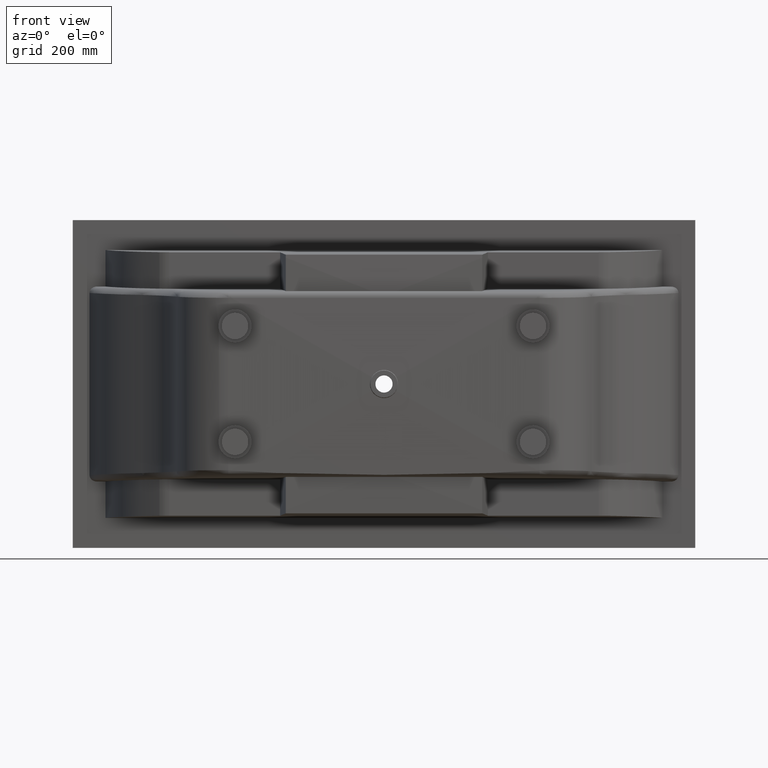
[diagram: clean part render]
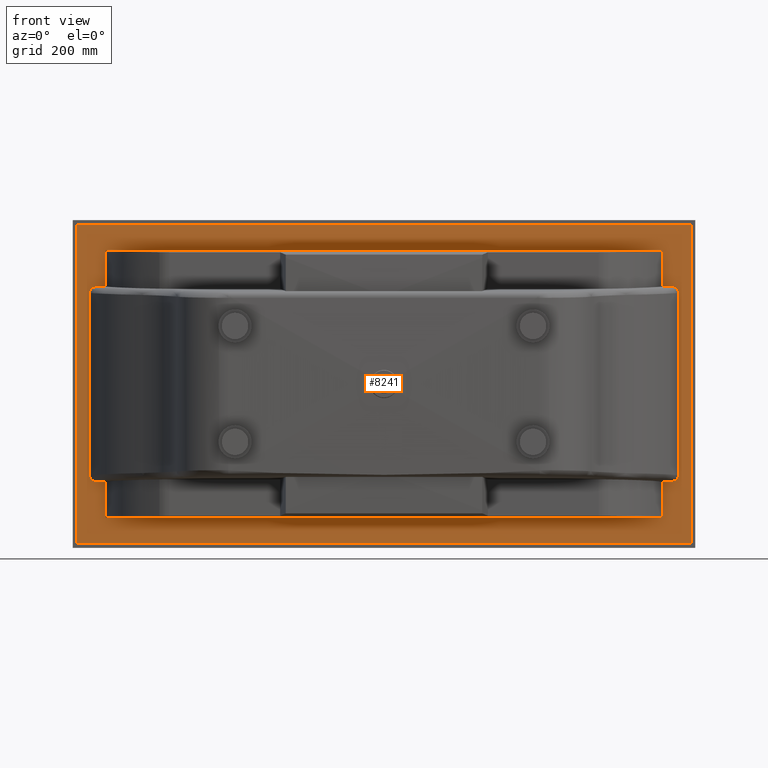
[diagram: same view with one face highlighted and labeled with its STEP entity id]
A machine part, front view. The second image highlights one B-rep face of the part: STEP entity #8241.
In plain terms, the highlighted planar face has unit normal (0, -1, 0).
Its self-contained STEP definition (entity closure, byte-faithful):
#23 = LINE ( 'NONE', #6524, #1768 ) ;
#71 = VECTOR ( 'NONE', #6803, 1000.000000000000000 ) ;
#90 = VECTOR ( 'NONE', #3848, 1000.000000000000000 ) ;
#114 = VERTEX_POINT ( 'NONE', #728 ) ;
#184 = VERTEX_POINT ( 'NONE', #8555 ) ;
#253 = VECTOR ( 'NONE', #2377, 1000.000000000000000 ) ;
#306 = CARTESIAN_POINT ( 'NONE',  ( 58.50698614259769000, 0.0000000000000000000, -785.0471888328023600 ) ) ;
#332 = CARTESIAN_POINT ( 'NONE',  ( 50.59990737379110500, -0.0000000000000000000, -771.1726844408915400 ) ) ;
#364 = ORIENTED_EDGE ( 'NONE', *, *, #5227, .T. ) ;
#374 = DIRECTION ( 'NONE',  ( -0.0000000000000000000, -0.0000000000000000000, -1.000000000000000000 ) ) ;
#393 = CARTESIAN_POINT ( 'NONE',  ( 60.00000000000255100, 0.0000000000000000000, -789.5018008824870300 ) ) ;
#398 = DIRECTION ( 'NONE',  ( -1.000000000000000000, 0.0000000000000000000, 0.0000000000000000000 ) ) ;
#402 = ORIENTED_EDGE ( 'NONE', *, *, #1420, .F. ) ;
#425 = CARTESIAN_POINT ( 'NONE',  ( 1822.045879442682200, -0.0000000000000000000, -784.5819432553215600 ) ) ;
#453 = VERTEX_POINT ( 'NONE', #3902 ) ;
#542 = CARTESIAN_POINT ( 'NONE',  ( 62.00439208400629100, -0.0000000000000000000, -202.8489472424220400 ) ) ;
#551 = EDGE_CURVE ( 'NONE', #184, #6965, #5439, .T. ) ;
#567 = ORIENTED_EDGE ( 'NONE', *, *, #9147, .T. ) ;
#602 = CARTESIAN_POINT ( 'NONE',  ( 69.87529596125963800, -0.0000000000000000000, -200.6099005751303300 ) ) ;
#611 = CARTESIAN_POINT ( 'NONE',  ( 1826.941555854491300, 0.0000000000000000000, -211.0350116347083000 ) ) ;
#728 = CARTESIAN_POINT ( 'NONE',  ( 98.92710784676805200, 0.0000000000000000000, -899.5018008824869200 ) ) ;
#839 = LINE ( 'NONE', #3352, #8149 ) ;
#894 = EDGE_CURVE ( 'NONE', #1852, #5026, #4994, .T. ) ;
#896 = CARTESIAN_POINT ( 'NONE',  ( 50.71779609476657000, -0.0000000000000000000, -217.4735161218352700 ) ) ;
#960 = CARTESIAN_POINT ( 'NONE',  ( 58.49836198429665000, 0.0000000000000000000, -205.0016772999846100 ) ) ;
#963 = CARTESIAN_POINT ( 'NONE',  ( 7.784735339874482800E-016, 0.0000000000000000000, -977.0000000000000000 ) ) ;
#1017 = EDGE_CURVE ( 'NONE', #5026, #8993, #839, .T. ) ;
#1057 = CARTESIAN_POINT ( 'NONE',  ( 55.44021134214971600, 0.0000000000000000000, -782.2838892614028100 ) ) ;
#1085 = CARTESIAN_POINT ( 'NONE',  ( 50.55988753108442800, 0.0000000000000000000, -769.7886444007122000 ) ) ;
#1179 = CARTESIAN_POINT ( 'NONE',  ( 1820.368228453022800, -0.0000000000000000000, -785.7824772192605000 ) ) ;
#1229 = CARTESIAN_POINT ( 'NONE',  ( 59.63177154698249200, -0.0000000000000000000, -204.2175227807381400 ) ) ;
#1290 = CARTESIAN_POINT ( 'NONE',  ( 53.72596785293767900, 0.0000000000000000000, -209.8895801317027000 ) ) ;
#1334 = CARTESIAN_POINT ( 'NONE',  ( 1812.814519508303200, -0.0000000000000000000, -201.0548218446952500 ) ) ;
#1362 = EDGE_CURVE ( 'NONE', #453, #114, #5944, .T. ) ;
#1363 = CARTESIAN_POINT ( 'NONE',  ( 1827.438647752279400, 0.0000000000000000000, -211.9450546756605700 ) ) ;
#1383 = ORIENTED_EDGE ( 'NONE', *, *, #3309, .F. ) ;
#1420 = EDGE_CURVE ( 'NONE', #453, #2269, #23, .T. ) ;
#1453 = CARTESIAN_POINT ( 'NONE',  ( 1829.440112468920700, 0.0000000000000000000, -214.9999999999992900 ) ) ;
#1463 = DIRECTION ( 'NONE',  ( 0.0000000000000000000, 0.0000000000000000000, -1.000000000000000000 ) ) ;
#1570 = VERTEX_POINT ( 'NONE', #8928 ) ;
#1571 = ORIENTED_EDGE ( 'NONE', *, *, #6033, .F. ) ;
#1578 = CARTESIAN_POINT ( 'NONE',  ( 1867.000000000000000, 0.0000000000000000000, -990.0000000000000000 ) ) ;
#1589 = B_SPLINE_CURVE_WITH_KNOTS ( 'NONE', 3,
 ( #5298, #7999, #7406, #3220, #8091, #3945, #8798, #4648, #306, #5324, #1057, #6009, #1797, #6711, #2540, #7442, #3244, #8125, #3977, #8829, #4683, #332, #5358, #1085 ),
 .UNSPECIFIED., .F., .F.,
 ( 4, 2, 2, 2, 2, 2, 2, 2, 2, 2, 2, 4 ),
 ( 6.938893903907228400E-017, 0.004086599581851857300, 0.008173199163703645200, 0.01225979874555543200, 0.01634639832740722100, 0.02043299790925901000, 0.02247629770018490200, 0.02349794759564771700, 0.02451959749111052800, 0.02860619707296117500, 0.03064949686388634300, 0.03269279665481150700 ),
 .UNSPECIFIED. ) ;
#1662 = CARTESIAN_POINT ( 'NONE',  ( 60.00000000000255100, 0.0000000000000000000, -899.5018008824869200 ) ) ;
#1731 = EDGE_LOOP ( 'NONE', ( #1571, #9224, #2793, #402, #8324, #6634, #7650, #1860, #6894, #4558, #9156, #1383, #364, #5025, #5080, #4260 ) ) ;
#1764 = CARTESIAN_POINT ( 'NONE',  ( 72.61661137529145500, 2.775557561562891400E-014, -200.4981991175118000 ) ) ;
#1768 = VECTOR ( 'NONE', #7914, 1000.000000000000000 ) ;
#1797 = CARTESIAN_POINT ( 'NONE',  ( 53.78213059829476400, 0.0000000000000000000, -780.1280788484742700 ) ) ;
#1816 = ORIENTED_EDGE ( 'NONE', *, *, #6672, .T. ) ;
#1852 = VERTEX_POINT ( 'NONE', #8156 ) ;
#1860 = ORIENTED_EDGE ( 'NONE', *, *, #5041, .T. ) ;
#1885 = CARTESIAN_POINT ( 'NONE',  ( 98.92710784676805200, 0.0000000000000000000, -789.5018008824870300 ) ) ;
#1887 = CARTESIAN_POINT ( 'NONE',  ( 1829.440112468920700, 0.0000000000000000000, -769.7886444007122000 ) ) ;
#1922 = CARTESIAN_POINT ( 'NONE',  ( 1817.995607915999200, -0.0000000000000000000, -787.1510527575767400 ) ) ;
#1939 = LINE ( 'NONE', #3303, #3622 ) ;
#1970 = EDGE_CURVE ( 'NONE', #7252, #4185, #9194, .T. ) ;
#2050 = LINE ( 'NONE', #393, #71 ) ;
#2079 = CARTESIAN_POINT ( 'NONE',  ( 1816.751422504065000, -0.0000000000000000000, -202.2917947482411300 ) ) ;
#2112 = CARTESIAN_POINT ( 'NONE',  ( 1828.652984479091400, -0.0000000000000000000, -214.7779460272171800 ) ) ;
#2249 = VERTEX_POINT ( 'NONE', #9191 ) ;
#2269 = VERTEX_POINT ( 'NONE', #7806 ) ;
#2377 = DIRECTION ( 'NONE',  ( -1.000000000000000000, 0.0000000000000000000, 0.0000000000000000000 ) ) ;
#2410 = CARTESIAN_POINT ( 'NONE',  ( 50.55988753108442800, 0.0000000000000000000, -218.8287366890956500 ) ) ;
#2416 = VECTOR ( 'NONE', #374, 1000.000000000000000 ) ;
#2495 = FACE_OUTER_BOUND ( 'NONE', #7465, .T. ) ;
#2520 = VECTOR ( 'NONE', #6381, 1000.000000000000000 ) ;
#2540 = CARTESIAN_POINT ( 'NONE',  ( 53.05844414551375400, 0.0000000000000000000, -778.9649883652903100 ) ) ;
#2627 = CARTESIAN_POINT ( 'NONE',  ( 1828.626595463912500, 0.0000000000000000000, -775.1779686221774500 ) ) ;
#2653 = CARTESIAN_POINT ( 'NONE',  ( 1814.806378367074600, -0.0000000000000000000, -788.3822674876570300 ) ) ;
#2705 = ORIENTED_EDGE ( 'NONE', *, *, #4324, .T. ) ;
#2790 = CARTESIAN_POINT ( 'NONE',  ( 1820.367955493560400, -0.0000000000000000000, -204.1809191560115300 ) ) ;
#2793 = ORIENTED_EDGE ( 'NONE', *, *, #6926, .T. ) ;
#2808 = CARTESIAN_POINT ( 'NONE',  ( 52.10240527269268500, 0.0000000000000000000, -212.8873527537151300 ) ) ;
#2815 = DIRECTION ( 'NONE',  ( 0.0000000000000000000, 0.0000000000000000000, 1.000000000000000000 ) ) ;
#2820 = CARTESIAN_POINT ( 'NONE',  ( 1829.239987892901400, 0.0000000000000000000, -217.4503646374669800 ) ) ;
#2834 = VECTOR ( 'NONE', #4790, 1000.000000000000000 ) ;
#2862 = AXIS2_PLACEMENT_3D ( 'NONE', #3368, #4135, #8991 ) ;
#3220 = CARTESIAN_POINT ( 'NONE',  ( 67.18548049170162500, -0.0000000000000000000, -788.9451781553035500 ) ) ;
#3244 = CARTESIAN_POINT ( 'NONE',  ( 52.56135224772603500, 0.0000000000000000000, -778.0549453243382900 ) ) ;
#3303 = CARTESIAN_POINT ( 'NONE',  ( 1.311271451497692100E-029, 0.0000000000000000000, -13.00000000000001100 ) ) ;
#3309 = EDGE_CURVE ( 'NONE', #5510, #8993, #5917, .T. ) ;
#3330 = CARTESIAN_POINT ( 'NONE',  ( 1827.897594727312000, 0.0000000000000000000, -777.1126472462834700 ) ) ;
#3352 = CARTESIAN_POINT ( 'NONE',  ( 60.00000000000255100, 0.0000000000000000000, -200.4981991175117500 ) ) ;
#3355 = CARTESIAN_POINT ( 'NONE',  ( 1812.813539966304700, -0.0000000000000000000, -788.9167120731405000 ) ) ;
#3368 = CARTESIAN_POINT ( 'NONE',  ( 1.311271451497692100E-029, 0.0000000000000000000, -990.0000000000000000 ) ) ;
#3397 = PLANE ( 'NONE',  #2862 ) ;
#3404 = CARTESIAN_POINT ( 'NONE',  ( 67.85563008519442000, 0.0000000000000000000, -200.9439969385303800 ) ) ;
#3411 = CARTESIAN_POINT ( 'NONE',  ( 12.99999999999999800, 0.0000000000000000000, -977.0000000000000000 ) ) ;
#3501 = CARTESIAN_POINT ( 'NONE',  ( 71.23784990306170100, -0.0000000000000000000, -200.4981991175117500 ) ) ;
#3512 = CARTESIAN_POINT ( 'NONE',  ( 1823.607753148149000, -0.0000000000000000000, -206.7359909930006600 ) ) ;
#3545 = CARTESIAN_POINT ( 'NONE',  ( 1829.440112468920700, -0.0000000000000000000, -219.5181543089827000 ) ) ;
#3586 = VECTOR ( 'NONE', #2815, 1000.000000000000000 ) ;
#3622 = VECTOR ( 'NONE', #398, 1000.000000000000000 ) ;
#3660 = CARTESIAN_POINT ( 'NONE',  ( 1807.383388624713500, 2.775557561562891400E-014, -789.5018008824869200 ) ) ;
#3728 = VECTOR ( 'NONE', #8919, 1000.000000000000000 ) ;
#3754 = VECTOR ( 'NONE', #4506, 1000.000000000000000 ) ;
#3758 = VERTEX_POINT ( 'NONE', #5735 ) ;
#3765 = VERTEX_POINT ( 'NONE', #4391 ) ;
#3847 = EDGE_CURVE ( 'NONE', #184, #5078, #5172, .T. ) ;
#3848 = DIRECTION ( 'NONE',  ( -0.0000000000000000000, -0.0000000000000000000, -1.000000000000000000 ) ) ;
#3902 = CARTESIAN_POINT ( 'NONE',  ( 1781.072892153236800, 0.0000000000000000000, -899.5018008824869200 ) ) ;
#3945 = CARTESIAN_POINT ( 'NONE',  ( 63.24857749594073700, -0.0000000000000000000, -787.7082052517574800 ) ) ;
#3977 = CARTESIAN_POINT ( 'NONE',  ( 51.34701552091355800, -0.0000000000000000000, -775.2220539727814000 ) ) ;
#3981 = EDGE_CURVE ( 'NONE', #4668, #114, #7780, .T. ) ;
#4010 = CARTESIAN_POINT ( 'NONE',  ( 1807.383388624713500, 2.775557561562891400E-014, -200.4981991175118300 ) ) ;
#4058 = CARTESIAN_POINT ( 'NONE',  ( 1826.274032147067400, 0.0000000000000000000, -780.1104198682958200 ) ) ;
#4089 = CARTESIAN_POINT ( 'NONE',  ( 1810.124704038745700, -0.0000000000000000000, -789.3900994248685900 ) ) ;
#4135 = DIRECTION ( 'NONE',  ( 0.0000000000000000000, -1.000000000000000000, 0.0000000000000000000 ) ) ;
#4185 = VERTEX_POINT ( 'NONE', #3660 ) ;
#4208 = CARTESIAN_POINT ( 'NONE',  ( 98.92710784676805200, 0.0000000000000000000, -90.49819911751174600 ) ) ;
#4214 = CARTESIAN_POINT ( 'NONE',  ( 1807.383388624713500, 2.775557561562891400E-014, -200.4981991175118300 ) ) ;
#4236 = CARTESIAN_POINT ( 'NONE',  ( 63.24969009002495600, 0.0000000000000000000, -202.2919679659106900 ) ) ;
#4246 = CARTESIAN_POINT ( 'NONE',  ( 1825.823803114235500, -0.0000000000000000000, -209.3164302835846800 ) ) ;
#4260 = ORIENTED_EDGE ( 'NONE', *, *, #4787, .T. ) ;
#4297 = CARTESIAN_POINT ( 'NONE',  ( 51.37340453609288500, 0.0000000000000000000, -214.8220313778210500 ) ) ;
#4324 = EDGE_CURVE ( 'NONE', #8227, #3758, #7464, .T. ) ;
#4387 = EDGE_CURVE ( 'NONE', #1852, #1570, #7232, .T. ) ;
#4391 = CARTESIAN_POINT ( 'NONE',  ( 72.61661137529151200, 2.775557561562891400E-014, -789.5018008824869200 ) ) ;
#4434 = CARTESIAN_POINT ( 'NONE',  ( 1781.072892153237000, 0.0000000000000000000, -104.9999999999993200 ) ) ;
#4506 = DIRECTION ( 'NONE',  ( 0.0000000000000000000, 0.0000000000000000000, 1.000000000000000000 ) ) ;
#4513 = CARTESIAN_POINT ( 'NONE',  ( 55.43513126251419000, -0.0000000000000000000, -207.7194716384488200 ) ) ;
#4558 = ORIENTED_EDGE ( 'NONE', *, *, #894, .T. ) ;
#4648 = CARTESIAN_POINT ( 'NONE',  ( 59.63204450644545300, -0.0000000000000000000, -785.8190808439871900 ) ) ;
#4668 = VERTEX_POINT ( 'NONE', #1885 ) ;
#4683 = CARTESIAN_POINT ( 'NONE',  ( 50.76001210710408200, 0.0000000000000000000, -772.5496353625312600 ) ) ;
#4714 = CARTESIAN_POINT ( 'NONE',  ( 98.92710784676805200, 0.0000000000000000000, -104.9999999999993200 ) ) ;
#4760 = CARTESIAN_POINT ( 'NONE',  ( 1823.610833269517600, 0.0000000000000000000, -783.2594868365787300 ) ) ;
#4761 = CARTESIAN_POINT ( 'NONE',  ( 1781.072892153236800, 0.0000000000000000000, -90.49819911751174600 ) ) ;
#4785 = CARTESIAN_POINT ( 'NONE',  ( 1807.383388624713500, 2.775557561562891400E-014, -789.5018008824869200 ) ) ;
#4787 = EDGE_CURVE ( 'NONE', #5078, #6919, #5776, .T. ) ;
#4790 = DIRECTION ( 'NONE',  ( 1.000000000000000000, 0.0000000000000000000, 0.0000000000000000000 ) ) ;
#4928 = CARTESIAN_POINT ( 'NONE',  ( 1826.766014145877100, -0.0000000000000000000, -210.7398890223396700 ) ) ;
#4962 = VECTOR ( 'NONE', #7386, 1000.000000000000000 ) ;
#4994 = B_SPLINE_CURVE_WITH_KNOTS ( 'NONE', 3,
 ( #5508, #2410, #896, #6664, #4297, #6948, #2808, #7626, #1290, #4513, #5308, #6531, #960, #1229, #9090, #542, #4236, #7947, #9000, #5565, #3404, #602, #3501, #8038 ),
 .UNSPECIFIED., .F., .F.,
 ( 4, 2, 2, 2, 2, 2, 2, 2, 2, 2, 2, 4 ),
 ( 2.860979249076398400E-017, 0.004086796569003765300, 0.006130194853505632800, 0.008173593138007501100, 0.01226038970701131100, 0.01634718627601512000, 0.01839058456051702700, 0.02043398284501893000, 0.02452077941402272200, 0.02656417769852461800, 0.02860757598302651400, 0.03269437255203031000 ),
 .UNSPECIFIED. ) ;
#5025 = ORIENTED_EDGE ( 'NONE', *, *, #551, .F. ) ;
#5026 = VERTEX_POINT ( 'NONE', #1764 ) ;
#5041 = EDGE_CURVE ( 'NONE', #3765, #1570, #1589, .T. ) ;
#5078 = VERTEX_POINT ( 'NONE', #4010 ) ;
#5080 = ORIENTED_EDGE ( 'NONE', *, *, #3847, .T. ) ;
#5153 = CARTESIAN_POINT ( 'NONE',  ( 98.92710784676805200, 0.0000000000000000000, -200.4981991175117500 ) ) ;
#5172 = LINE ( 'NONE', #6663, #4962 ) ;
#5208 = CARTESIAN_POINT ( 'NONE',  ( 50.55988753108453400, 0.0000000000000000000, -214.9999999999992900 ) ) ;
#5227 = EDGE_CURVE ( 'NONE', #5510, #6965, #6547, .T. ) ;
#5298 = CARTESIAN_POINT ( 'NONE',  ( 72.61661137529151200, 2.775557561562891400E-014, -789.5018008824869200 ) ) ;
#5308 = CARTESIAN_POINT ( 'NONE',  ( 56.38916673048788700, 0.0000000000000000000, -206.7405131634198500 ) ) ;
#5324 = CARTESIAN_POINT ( 'NONE',  ( 56.39224685185617900, -0.0000000000000000000, -783.2640090069979800 ) ) ;
#5358 = CARTESIAN_POINT ( 'NONE',  ( 50.55988753108441400, -0.0000000000000000000, -770.4818456910161300 ) ) ;
#5438 = CARTESIAN_POINT ( 'NONE',  ( 1821.501638015708300, 0.0000000000000000000, -784.9983227000138900 ) ) ;
#5439 = LINE ( 'NONE', #4434, #3586 ) ;
#5457 = VERTEX_POINT ( 'NONE', #3411 ) ;
#5508 = CARTESIAN_POINT ( 'NONE',  ( 50.55988753108442800, 0.0000000000000000000, -220.2113555992864100 ) ) ;
#5510 = VERTEX_POINT ( 'NONE', #4208 ) ;
#5565 = CARTESIAN_POINT ( 'NONE',  ( 67.18646003370055600, -0.0000000000000000000, -201.0832879268581300 ) ) ;
#5572 = CARTESIAN_POINT ( 'NONE',  ( 1810.126635516349600, -2.111389864958325300E-030, -200.6102524096980100 ) ) ;
#5600 = CARTESIAN_POINT ( 'NONE',  ( 1827.277758807621500, -0.0000000000000000000, -211.6372886515452500 ) ) ;
#5735 = CARTESIAN_POINT ( 'NONE',  ( 1867.000000000000000, 0.0000000000000000000, -13.00000000000000000 ) ) ;
#5776 = B_SPLINE_CURVE_WITH_KNOTS ( 'NONE', 3,
 ( #4214, #8358, #5572, #1334, #6269, #2079, #6981, #2790, #7693, #3512, #8383, #4246, #9101, #4928, #611, #5600, #1363, #6293, #2112, #7014, #2820, #7718, #3545, #8410 ),
 .UNSPECIFIED., .F., .F.,
 ( 4, 2, 2, 2, 2, 2, 2, 2, 2, 2, 2, 4 ),
 ( 2.237726045655904800E-016, 0.004086599581851804400, 0.008173199163703385000, 0.01225979874555496600, 0.01634639832740654400, 0.02043299790925812500, 0.02247629770018370900, 0.02349794759564649900, 0.02451959749110929300, 0.02860619707296045700, 0.03064949686388596500, 0.03269279665481147200 ),
 .UNSPECIFIED. ) ;
#5917 = LINE ( 'NONE', #6954, #6146 ) ;
#5944 = LINE ( 'NONE', #1662, #253 ) ;
#6009 = CARTESIAN_POINT ( 'NONE',  ( 54.17619688576920100, -0.0000000000000000000, -780.6835697164139000 ) ) ;
#6033 = EDGE_CURVE ( 'NONE', #7252, #6919, #6221, .T. ) ;
#6097 = CARTESIAN_POINT ( 'NONE',  ( 1829.440112468921100, 0.0000000000000000000, -771.1712633109029900 ) ) ;
#6098 = CARTESIAN_POINT ( 'NONE',  ( 1829.440112468920700, 0.0000000000000000000, -220.2113555992864100 ) ) ;
#6106 = VECTOR ( 'NONE', #1463, 1000.000000000000000 ) ;
#6126 = CARTESIAN_POINT ( 'NONE',  ( 1819.783947659089300, 0.0000000000000000000, -786.1466632168783200 ) ) ;
#6146 = VECTOR ( 'NONE', #7660, 1000.000000000000000 ) ;
#6221 = LINE ( 'NONE', #1453, #2520 ) ;
#6269 = CARTESIAN_POINT ( 'NONE',  ( 1814.140129180217600, 0.0000000000000000000, -201.3872126751561500 ) ) ;
#6293 = CARTESIAN_POINT ( 'NONE',  ( 1828.194258200587200, -0.0000000000000000000, -213.4935703847790800 ) ) ;
#6381 = DIRECTION ( 'NONE',  ( 0.0000000000000000000, 0.0000000000000000000, 1.000000000000000000 ) ) ;
#6524 = CARTESIAN_POINT ( 'NONE',  ( 1781.072892153237000, 0.0000000000000000000, -104.9999999999993200 ) ) ;
#6531 = CARTESIAN_POINT ( 'NONE',  ( 57.95412055732236900, -0.0000000000000000000, -205.4180567446770200 ) ) ;
#6547 = LINE ( 'NONE', #8270, #2834 ) ;
#6634 = ORIENTED_EDGE ( 'NONE', *, *, #3981, .F. ) ;
#6663 = CARTESIAN_POINT ( 'NONE',  ( 60.00000000000255100, 0.0000000000000000000, -200.4981991175117500 ) ) ;
#6664 = CARTESIAN_POINT ( 'NONE',  ( 51.18097981546930000, -0.0000000000000000000, -215.4799536728978900 ) ) ;
#6672 = EDGE_CURVE ( 'NONE', #3758, #2249, #1939, .T. ) ;
#6711 = CARTESIAN_POINT ( 'NONE',  ( 53.23398585412816400, -0.0000000000000000000, -779.2601109776590000 ) ) ;
#6760 = DIRECTION ( 'NONE',  ( 1.000000000000000000, 0.0000000000000000000, 0.0000000000000000000 ) ) ;
#6800 = CARTESIAN_POINT ( 'NONE',  ( 1828.819020184535000, -0.0000000000000000000, -774.5200463271002000 ) ) ;
#6803 = DIRECTION ( 'NONE',  ( -1.000000000000000000, 0.0000000000000000000, 0.0000000000000000000 ) ) ;
#6834 = CARTESIAN_POINT ( 'NONE',  ( 1816.750309909980400, 0.0000000000000000000, -787.7080320340880900 ) ) ;
#6894 = ORIENTED_EDGE ( 'NONE', *, *, #4387, .F. ) ;
#6919 = VERTEX_POINT ( 'NONE', #6098 ) ;
#6926 = EDGE_CURVE ( 'NONE', #4185, #2269, #2050, .T. ) ;
#6932 = EDGE_CURVE ( 'NONE', #4668, #3765, #7446, .T. ) ;
#6948 = CARTESIAN_POINT ( 'NONE',  ( 51.83624665436180100, -0.0000000000000000000, -213.5197191133453300 ) ) ;
#6954 = CARTESIAN_POINT ( 'NONE',  ( 98.92710784676805200, 0.0000000000000000000, -104.9999999999993200 ) ) ;
#6965 = VERTEX_POINT ( 'NONE', #4761 ) ;
#6981 = CARTESIAN_POINT ( 'NONE',  ( 1817.997289742717800, 0.0000000000000000000, -202.8503089896315400 ) ) ;
#7014 = CARTESIAN_POINT ( 'NONE',  ( 1829.120928022868600, -0.0000000000000000000, -216.7733238422386300 ) ) ;
#7182 = LINE ( 'NONE', #963, #8820 ) ;
#7232 = LINE ( 'NONE', #5208, #90 ) ;
#7252 = VERTEX_POINT ( 'NONE', #7755 ) ;
#7279 = EDGE_CURVE ( 'NONE', #2249, #5457, #7962, .T. ) ;
#7303 = ORIENTED_EDGE ( 'NONE', *, *, #7279, .T. ) ;
#7386 = DIRECTION ( 'NONE',  ( 1.000000000000000000, 0.0000000000000000000, 0.0000000000000000000 ) ) ;
#7406 = CARTESIAN_POINT ( 'NONE',  ( 69.87336448365603300, 1.093737993108480400E-030, -789.3897475903004300 ) ) ;
#7442 = CARTESIAN_POINT ( 'NONE',  ( 52.72224119238408900, -0.0000000000000000000, -778.3627113484533300 ) ) ;
#7446 = LINE ( 'NONE', #8206, #3728 ) ;
#7464 = LINE ( 'NONE', #1578, #3754 ) ;
#7465 = EDGE_LOOP ( 'NONE', ( #7303, #567, #2705, #1816 ) ) ;
#7517 = CARTESIAN_POINT ( 'NONE',  ( 1828.163753345643300, -0.0000000000000000000, -776.4802808866530800 ) ) ;
#7549 = CARTESIAN_POINT ( 'NONE',  ( 1814.143489885656400, 0.0000000000000000000, -788.5803053867906600 ) ) ;
#7557 = CARTESIAN_POINT ( 'NONE',  ( 1867.000000000000000, 0.0000000000000000000, -977.0000000000001100 ) ) ;
#7626 = CARTESIAN_POINT ( 'NONE',  ( 52.99867488277993700, -0.0000000000000000000, -211.0453992784297000 ) ) ;
#7650 = ORIENTED_EDGE ( 'NONE', *, *, #6932, .T. ) ;
#7660 = DIRECTION ( 'NONE',  ( -0.0000000000000000000, -0.0000000000000000000, -1.000000000000000000 ) ) ;
#7693 = CARTESIAN_POINT ( 'NONE',  ( 1821.493013857407500, 0.0000000000000000000, -204.9528111671962200 ) ) ;
#7718 = CARTESIAN_POINT ( 'NONE',  ( 1829.400092626214200, -0.0000000000000000000, -218.8273155591071200 ) ) ;
#7755 = CARTESIAN_POINT ( 'NONE',  ( 1829.440112468920700, 0.0000000000000000000, -769.7886444007122000 ) ) ;
#7780 = LINE ( 'NONE', #4714, #2416 ) ;
#7806 = CARTESIAN_POINT ( 'NONE',  ( 1781.072892153236800, 0.0000000000000000000, -789.5018008824870300 ) ) ;
#7914 = DIRECTION ( 'NONE',  ( 0.0000000000000000000, 0.0000000000000000000, 1.000000000000000000 ) ) ;
#7947 = CARTESIAN_POINT ( 'NONE',  ( 65.19362163293014600, -0.0000000000000000000, -201.6177325123414900 ) ) ;
#7962 = LINE ( 'NONE', #8470, #6106 ) ;
#7999 = CARTESIAN_POINT ( 'NONE',  ( 71.23565966781137600, 2.775557561562892000E-014, -789.5018008824869200 ) ) ;
#8038 = CARTESIAN_POINT ( 'NONE',  ( 72.61661137529145500, 2.775557561562891400E-014, -200.4981991175118000 ) ) ;
#8055 = FACE_BOUND ( 'NONE', #1731, .T. ) ;
#8091 = CARTESIAN_POINT ( 'NONE',  ( 65.85987081978754500, 0.0000000000000000000, -788.6127873248426600 ) ) ;
#8125 = CARTESIAN_POINT ( 'NONE',  ( 51.80574179941736900, -0.0000000000000000000, -776.5064296152194200 ) ) ;
#8149 = VECTOR ( 'NONE', #6760, 1000.000000000000000 ) ;
#8156 = CARTESIAN_POINT ( 'NONE',  ( 50.55988753108442800, 0.0000000000000000000, -220.2113555992864100 ) ) ;
#8204 = CARTESIAN_POINT ( 'NONE',  ( 1827.001325117224700, -0.0000000000000000000, -778.9546007215688000 ) ) ;
#8206 = CARTESIAN_POINT ( 'NONE',  ( 60.00000000000255100, 0.0000000000000000000, -789.5018008824870300 ) ) ;
#8227 = VERTEX_POINT ( 'NONE', #7557 ) ;
#8235 = CARTESIAN_POINT ( 'NONE',  ( 1812.144369914810600, 0.0000000000000000000, -789.0560030614682300 ) ) ;
#8241 = ADVANCED_FACE ( 'NONE', ( #8055, #2495 ), #3397, .T. ) ;
#8270 = CARTESIAN_POINT ( 'NONE',  ( 60.00000000000255100, 0.0000000000000000000, -90.49819911751174600 ) ) ;
#8324 = ORIENTED_EDGE ( 'NONE', *, *, #1362, .T. ) ;
#8358 = CARTESIAN_POINT ( 'NONE',  ( 1808.764340332193300, 2.775557561562891400E-014, -200.4981991175118900 ) ) ;
#8383 = CARTESIAN_POINT ( 'NONE',  ( 1824.559788657855100, 0.0000000000000000000, -207.7161107385957500 ) ) ;
#8410 = CARTESIAN_POINT ( 'NONE',  ( 1829.440112468920700, 0.0000000000000000000, -220.2113555992864100 ) ) ;
#8470 = CARTESIAN_POINT ( 'NONE',  ( 12.99999999999999800, 0.0000000000000000000, -990.0000000000000000 ) ) ;
#8555 = CARTESIAN_POINT ( 'NONE',  ( 1781.072892153236800, 0.0000000000000000000, -200.4981991175117500 ) ) ;
#8744 = DIRECTION ( 'NONE',  ( 1.000000000000000000, 0.0000000000000000000, -5.988257953749495800E-017 ) ) ;
#8798 = CARTESIAN_POINT ( 'NONE',  ( 62.00271025728739000, 0.0000000000000000000, -787.1496910103669500 ) ) ;
#8820 = VECTOR ( 'NONE', #8744, 1000.000000000000000 ) ;
#8829 = CARTESIAN_POINT ( 'NONE',  ( 50.87907197713620600, -0.0000000000000000000, -773.2266761577599300 ) ) ;
#8885 = CARTESIAN_POINT ( 'NONE',  ( 1829.282203905238200, -0.0000000000000000000, -772.5264838781632800 ) ) ;
#8917 = CARTESIAN_POINT ( 'NONE',  ( 1824.564868737490800, -0.0000000000000000000, -782.2805283615498400 ) ) ;
#8919 = DIRECTION ( 'NONE',  ( -1.000000000000000000, 0.0000000000000000000, 0.0000000000000000000 ) ) ;
#8928 = CARTESIAN_POINT ( 'NONE',  ( 50.55988753108442800, 0.0000000000000000000, -769.7886444007122000 ) ) ;
#8948 = CARTESIAN_POINT ( 'NONE',  ( 1808.762150096944000, -0.0000000000000000000, -789.5018008824868000 ) ) ;
#8991 = DIRECTION ( 'NONE',  ( 0.0000000000000000000, -0.0000000000000000000, -1.000000000000000000 ) ) ;
#8993 = VERTEX_POINT ( 'NONE', #5153 ) ;
#9000 = CARTESIAN_POINT ( 'NONE',  ( 65.85651011434899300, 0.0000000000000000000, -201.4196946132080700 ) ) ;
#9090 = CARTESIAN_POINT ( 'NONE',  ( 60.21605234091580200, 0.0000000000000000000, -203.8533367831198900 ) ) ;
#9101 = CARTESIAN_POINT ( 'NONE',  ( 1826.217869401710000, 0.0000000000000000000, -209.8719211515241900 ) ) ;
#9147 = EDGE_CURVE ( 'NONE', #5457, #8227, #7182, .T. ) ;
#9156 = ORIENTED_EDGE ( 'NONE', *, *, #1017, .T. ) ;
#9191 = CARTESIAN_POINT ( 'NONE',  ( 12.99999999999999800, 0.0000000000000000000, -13.00000000000000000 ) ) ;
#9194 = B_SPLINE_CURVE_WITH_KNOTS ( 'NONE', 3,
 ( #1887, #6097, #8885, #6800, #2627, #7517, #3330, #8204, #4058, #8917, #4760, #425, #5438, #1179, #6126, #1922, #6834, #2653, #7549, #3355, #8235, #4089, #8948, #4785 ),
 .UNSPECIFIED., .F., .F.,
 ( 4, 2, 2, 2, 2, 2, 2, 2, 2, 2, 2, 4 ),
 ( 0.0000000000000000000, 0.004086796569004094900, 0.006130194853505979700, 0.008173593138007865400, 0.01226038970701222300, 0.01634718627601658400, 0.01839058456051840100, 0.02043398284502022000, 0.02452077941402369700, 0.02656417769852543300, 0.02860757598302717000, 0.03269437255203069800 ),
 .UNSPECIFIED. ) ;
#9224 = ORIENTED_EDGE ( 'NONE', *, *, #1970, .T. ) ;